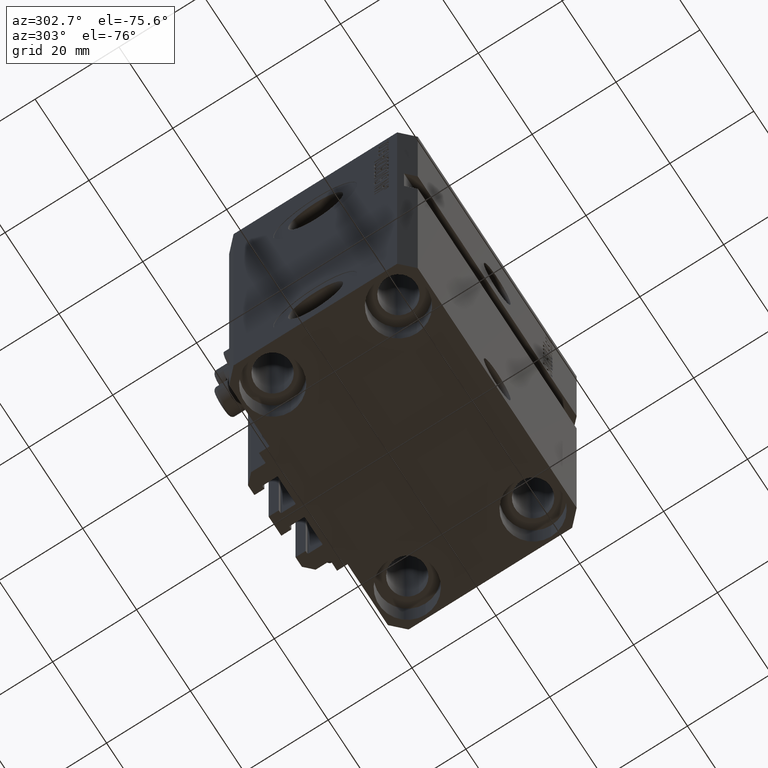
[diagram: clean part render]
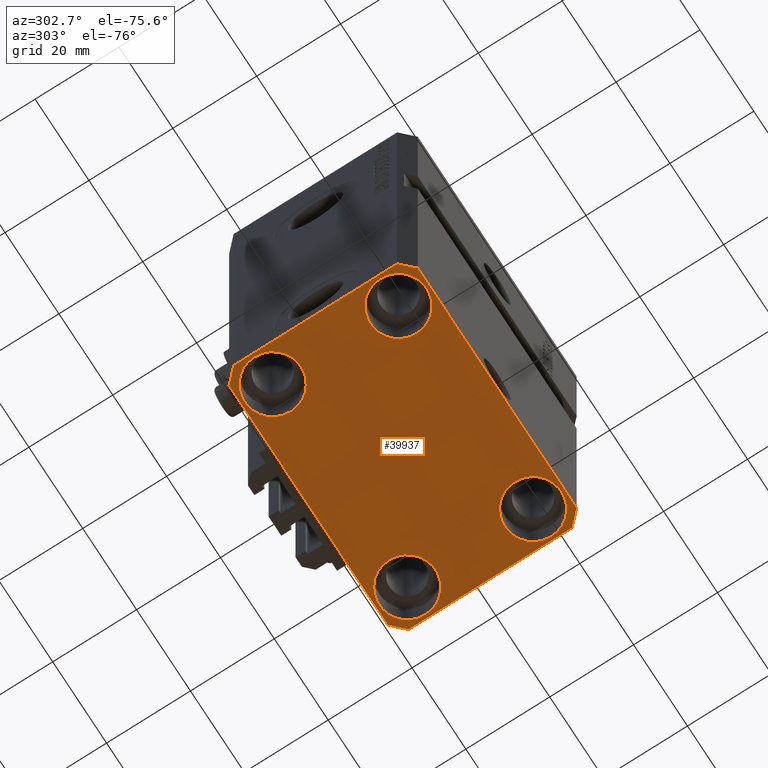
[diagram: same view with one face highlighted and labeled with its STEP entity id]
A machine part, auxiliary view. The second image highlights one B-rep face of the part: STEP entity #39937.
In plain terms, the highlighted planar face has unit normal (0, 0, 1).
Its self-contained STEP definition (entity closure, byte-faithful):
#222 = VERTEX_POINT ( 'NONE', #24711 ) ;
#1506 = DIRECTION ( 'NONE',  ( 1.000000000000000000, 0.000000000000000000, 0.000000000000000000 ) ) ;
#1533 = CIRCLE ( 'NONE', #2302, 6.750000000041541881 ) ;
#1619 = VECTOR ( 'NONE', #29073, 1000.000000000000000 ) ;
#2116 = ORIENTED_EDGE ( 'NONE', *, *, #13832, .T. ) ;
#2244 = VECTOR ( 'NONE', #15704, 1000.000000000000000 ) ;
#2291 = EDGE_CURVE ( 'NONE', #18952, #23444, #23820, .T. ) ;
#2302 = AXIS2_PLACEMENT_3D ( 'NONE', #36928, #40039, #25741 ) ;
#3060 = VERTEX_POINT ( 'NONE', #26685 ) ;
#3150 = EDGE_CURVE ( 'NONE', #31774, #42498, #34679, .T. ) ;
#3349 = EDGE_LOOP ( 'NONE', ( #16920, #2116 ) ) ;
#3382 = CARTESIAN_POINT ( 'NONE',  ( 31.74999999997746869, -15.00000000000000000, -106.0000000000000000 ) ) ;
#4137 = AXIS2_PLACEMENT_3D ( 'NONE', #27156, #33367, #23111 ) ;
#4245 = LINE ( 'NONE', #26216, #2244 ) ;
#4280 = DIRECTION ( 'NONE',  ( -1.000000000000000000, -2.352167425053553784E-16, 0.000000000000000000 ) ) ;
#4428 = AXIS2_PLACEMENT_3D ( 'NONE', #9627, #9143, #1506 ) ;
#4696 = EDGE_CURVE ( 'NONE', #222, #31842, #42130, .T. ) ;
#5339 = VERTEX_POINT ( 'NONE', #45715 ) ;
#5705 = AXIS2_PLACEMENT_3D ( 'NONE', #13060, #38839, #42650 ) ;
#5771 = FACE_BOUND ( 'NONE', #30067, .T. ) ;
#6006 = PLANE ( 'NONE',  #34609 ) ;
#6308 = CIRCLE ( 'NONE', #24637, 6.749999999977465137 ) ;
#7078 = DIRECTION ( 'NONE',  ( -0.7071067811865474617, -0.7071067811865474617, 0.000000000000000000 ) ) ;
#7308 = CARTESIAN_POINT ( 'NONE',  ( -29.49999999999650413, 22.49999999999949907, -106.0000000000000000 ) ) ;
#7571 = CIRCLE ( 'NONE', #19768, 6.750000000041541881 ) ;
#7744 = CARTESIAN_POINT ( 'NONE',  ( -25.00000000000000355, 15.00000000000000000, -106.0000000000000000 ) ) ;
#9076 = DIRECTION ( 'NONE',  ( 1.000000000000000000, 0.000000000000000000, 0.000000000000000000 ) ) ;
#9143 = DIRECTION ( 'NONE',  ( -0.000000000000000000, -0.000000000000000000, 1.000000000000000000 ) ) ;
#9627 = CARTESIAN_POINT ( 'NONE',  ( 25.00000000000000355, -15.00000000000000000, -106.0000000000000000 ) ) ;
#9796 = CIRCLE ( 'NONE', #4428, 6.749999999977465137 ) ;
#9831 = CARTESIAN_POINT ( 'NONE',  ( 0.000000000000000000, 0.000000000000000000, -106.0000000000000000 ) ) ;
#10209 = CARTESIAN_POINT ( 'NONE',  ( -32.49999999999650413, -19.49999999999949907, -106.0000000000000000 ) ) ;
#10252 = CARTESIAN_POINT ( 'NONE',  ( -31.75000000004154899, -15.00000000000000000, -106.0000000000000000 ) ) ;
#10445 = DIRECTION ( 'NONE',  ( 0.7071067811865474617, -0.7071067811865474617, 0.000000000000000000 ) ) ;
#11592 = EDGE_LOOP ( 'NONE', ( #15008, #28534 ) ) ;
#12454 = DIRECTION ( 'NONE',  ( 1.000000000000000000, 0.000000000000000000, 0.000000000000000000 ) ) ;
#12633 = LINE ( 'NONE', #37930, #29042 ) ;
#12729 = EDGE_CURVE ( 'NONE', #23444, #25827, #4245, .T. ) ;
#12848 = AXIS2_PLACEMENT_3D ( 'NONE', #36089, #34619, #9076 ) ;
#13060 = CARTESIAN_POINT ( 'NONE',  ( 24.99999999999999645, 15.00000000000000888, -106.0000000000000000 ) ) ;
#13832 = EDGE_CURVE ( 'NONE', #5339, #22368, #7571, .T. ) ;
#14353 = EDGE_CURVE ( 'NONE', #30783, #35636, #9796, .T. ) ;
#14504 = CARTESIAN_POINT ( 'NONE',  ( 32.49999999999702993, 19.49999999999945999, -106.0000000000000000 ) ) ;
#14805 = EDGE_LOOP ( 'NONE', ( #15026, #32025 ) ) ;
#15008 = ORIENTED_EDGE ( 'NONE', *, *, #28863, .T. ) ;
#15026 = ORIENTED_EDGE ( 'NONE', *, *, #14353, .T. ) ;
#15119 = EDGE_CURVE ( 'NONE', #42498, #31774, #45621, .T. ) ;
#15704 = DIRECTION ( 'NONE',  ( 1.334402673828349134E-14, 1.000000000000000000, 0.000000000000000000 ) ) ;
#16274 = DIRECTION ( 'NONE',  ( 1.000000000000000000, 0.000000000000000000, 0.000000000000000000 ) ) ;
#16920 = ORIENTED_EDGE ( 'NONE', *, *, #18642, .T. ) ;
#17044 = ORIENTED_EDGE ( 'NONE', *, *, #29475, .F. ) ;
#17226 = VERTEX_POINT ( 'NONE', #20629 ) ;
#17620 = ORIENTED_EDGE ( 'NONE', *, *, #15119, .T. ) ;
#18642 = EDGE_CURVE ( 'NONE', #22368, #5339, #1533, .T. ) ;
#18847 = CARTESIAN_POINT ( 'NONE',  ( 29.49999999999707967, 22.49999999999951328, -106.0000000000000000 ) ) ;
#18952 = VERTEX_POINT ( 'NONE', #40210 ) ;
#19768 = AXIS2_PLACEMENT_3D ( 'NONE', #25475, #21891, #36656 ) ;
#20344 = FACE_OUTER_BOUND ( 'NONE', #25507, .T. ) ;
#20629 = CARTESIAN_POINT ( 'NONE',  ( 29.49999999999707967, 22.49999999999951328, -106.0000000000000000 ) ) ;
#20808 = CARTESIAN_POINT ( 'NONE',  ( 31.74999999995845101, 15.00000000000000888, -106.0000000000000000 ) ) ;
#20824 = FACE_BOUND ( 'NONE', #3349, .T. ) ;
#21060 = FACE_BOUND ( 'NONE', #14805, .T. ) ;
#21154 = DIRECTION ( 'NONE',  ( 0.000000000000000000, -1.000000000000000000, 0.000000000000000000 ) ) ;
#21305 = EDGE_CURVE ( 'NONE', #38129, #18952, #12633, .T. ) ;
#21891 = DIRECTION ( 'NONE',  ( -0.000000000000000000, -0.000000000000000000, 1.000000000000000000 ) ) ;
#22368 = VERTEX_POINT ( 'NONE', #10252 ) ;
#23111 = DIRECTION ( 'NONE',  ( 1.000000000000000000, 0.000000000000000000, 0.000000000000000000 ) ) ;
#23444 = VERTEX_POINT ( 'NONE', #38777 ) ;
#23473 = CARTESIAN_POINT ( 'NONE',  ( -29.49999999999650413, -22.49999999999949907, -106.0000000000000000 ) ) ;
#23820 = LINE ( 'NONE', #27623, #27044 ) ;
#24144 = CARTESIAN_POINT ( 'NONE',  ( 32.49999999999702993, 19.49999999999945999, -106.0000000000000000 ) ) ;
#24390 = ORIENTED_EDGE ( 'NONE', *, *, #29208, .F. ) ;
#24414 = DIRECTION ( 'NONE',  ( 0.000000000000000000, 0.000000000000000000, 1.000000000000000000 ) ) ;
#24498 = AXIS2_PLACEMENT_3D ( 'NONE', #7744, #33752, #16274 ) ;
#24637 = AXIS2_PLACEMENT_3D ( 'NONE', #27746, #45378, #12454 ) ;
#24711 = CARTESIAN_POINT ( 'NONE',  ( -32.49999999999650413, 19.49999999999949907, -106.0000000000000000 ) ) ;
#25419 = ORIENTED_EDGE ( 'NONE', *, *, #37729, .F. ) ;
#25475 = CARTESIAN_POINT ( 'NONE',  ( -25.00000000000000355, -15.00000000000000000, -106.0000000000000000 ) ) ;
#25507 = EDGE_LOOP ( 'NONE', ( #24390, #17044, #27184, #26946, #29121, #41640, #45787, #25419 ) ) ;
#25741 = DIRECTION ( 'NONE',  ( 1.000000000000000000, 0.000000000000000000, 0.000000000000000000 ) ) ;
#25827 = VERTEX_POINT ( 'NONE', #24144 ) ;
#26216 = CARTESIAN_POINT ( 'NONE',  ( 32.49999999999651124, -19.49999999999949196, -106.0000000000000000 ) ) ;
#26685 = CARTESIAN_POINT ( 'NONE',  ( -29.49999999999650413, 22.49999999999949907, -106.0000000000000000 ) ) ;
#26748 = VECTOR ( 'NONE', #4280, 1000.000000000000000 ) ;
#26946 = ORIENTED_EDGE ( 'NONE', *, *, #2291, .F. ) ;
#27044 = VECTOR ( 'NONE', #31447, 1000.000000000000000 ) ;
#27156 = CARTESIAN_POINT ( 'NONE',  ( -25.00000000000000355, 15.00000000000000000, -106.0000000000000000 ) ) ;
#27184 = ORIENTED_EDGE ( 'NONE', *, *, #12729, .F. ) ;
#27623 = CARTESIAN_POINT ( 'NONE',  ( 29.49999999999650413, -22.49999999999949196, -106.0000000000000000 ) ) ;
#27746 = CARTESIAN_POINT ( 'NONE',  ( 25.00000000000000355, -15.00000000000000000, -106.0000000000000000 ) ) ;
#28210 = CARTESIAN_POINT ( 'NONE',  ( -31.75000000002253842, 15.00000000000000000, -106.0000000000000000 ) ) ;
#28534 = ORIENTED_EDGE ( 'NONE', *, *, #37546, .T. ) ;
#28863 = EDGE_CURVE ( 'NONE', #32410, #31246, #41992, .T. ) ;
#29042 = VECTOR ( 'NONE', #30547, 1000.000000000000000 ) ;
#29073 = DIRECTION ( 'NONE',  ( -0.7071067811865352493, 0.7071067811865597852, 0.000000000000000000 ) ) ;
#29121 = ORIENTED_EDGE ( 'NONE', *, *, #21305, .F. ) ;
#29208 = EDGE_CURVE ( 'NONE', #17226, #3060, #44601, .T. ) ;
#29475 = EDGE_CURVE ( 'NONE', #25827, #17226, #39577, .T. ) ;
#30067 = EDGE_LOOP ( 'NONE', ( #17620, #39044 ) ) ;
#30547 = DIRECTION ( 'NONE',  ( 1.000000000000000000, 1.176083712526788232E-16, 0.000000000000000000 ) ) ;
#30783 = VERTEX_POINT ( 'NONE', #44958 ) ;
#31246 = VERTEX_POINT ( 'NONE', #46792 ) ;
#31447 = DIRECTION ( 'NONE',  ( 0.7071067811865483499, 0.7071067811865466846, 0.000000000000000000 ) ) ;
#31774 = VERTEX_POINT ( 'NONE', #20808 ) ;
#31842 = VERTEX_POINT ( 'NONE', #40314 ) ;
#32025 = ORIENTED_EDGE ( 'NONE', *, *, #33471, .T. ) ;
#32410 = VERTEX_POINT ( 'NONE', #28210 ) ;
#33367 = DIRECTION ( 'NONE',  ( -0.000000000000000000, -0.000000000000000000, 1.000000000000000000 ) ) ;
#33471 = EDGE_CURVE ( 'NONE', #35636, #30783, #6308, .T. ) ;
#33752 = DIRECTION ( 'NONE',  ( -0.000000000000000000, -0.000000000000000000, 1.000000000000000000 ) ) ;
#34609 = AXIS2_PLACEMENT_3D ( 'NONE', #9831, #24414, #38940 ) ;
#34619 = DIRECTION ( 'NONE',  ( -0.000000000000000000, -0.000000000000000000, 1.000000000000000000 ) ) ;
#34679 = CIRCLE ( 'NONE', #5705, 6.749999999958452790 ) ;
#34878 = CARTESIAN_POINT ( 'NONE',  ( 18.25000000004154543, 15.00000000000000888, -106.0000000000000000 ) ) ;
#35614 = FACE_BOUND ( 'NONE', #11592, .T. ) ;
#35636 = VERTEX_POINT ( 'NONE', #3382 ) ;
#35972 = LINE ( 'NONE', #7308, #40717 ) ;
#36089 = CARTESIAN_POINT ( 'NONE',  ( 24.99999999999999645, 15.00000000000000888, -106.0000000000000000 ) ) ;
#36208 = EDGE_CURVE ( 'NONE', #31842, #38129, #42889, .T. ) ;
#36656 = DIRECTION ( 'NONE',  ( 1.000000000000000000, 0.000000000000000000, 0.000000000000000000 ) ) ;
#36928 = CARTESIAN_POINT ( 'NONE',  ( -25.00000000000000355, -15.00000000000000000, -106.0000000000000000 ) ) ;
#37546 = EDGE_CURVE ( 'NONE', #31246, #32410, #43750, .T. ) ;
#37627 = VECTOR ( 'NONE', #10445, 1000.000000000000114 ) ;
#37729 = EDGE_CURVE ( 'NONE', #3060, #222, #35972, .T. ) ;
#37930 = CARTESIAN_POINT ( 'NONE',  ( -29.49999999999650413, -22.49999999999949907, -106.0000000000000000 ) ) ;
#38129 = VERTEX_POINT ( 'NONE', #23473 ) ;
#38777 = CARTESIAN_POINT ( 'NONE',  ( 32.49999999999651124, -19.49999999999949196, -106.0000000000000000 ) ) ;
#38839 = DIRECTION ( 'NONE',  ( -0.000000000000000000, -0.000000000000000000, 1.000000000000000000 ) ) ;
#38940 = DIRECTION ( 'NONE',  ( 1.000000000000000000, 0.000000000000000000, -0.000000000000000000 ) ) ;
#39044 = ORIENTED_EDGE ( 'NONE', *, *, #3150, .T. ) ;
#39577 = LINE ( 'NONE', #14504, #1619 ) ;
#39937 = ADVANCED_FACE ( 'NONE', ( #20824, #21060, #5771, #35614, #20344 ), #6006, .F. ) ;
#40039 = DIRECTION ( 'NONE',  ( -0.000000000000000000, -0.000000000000000000, 1.000000000000000000 ) ) ;
#40210 = CARTESIAN_POINT ( 'NONE',  ( 29.49999999999650413, -22.49999999999949196, -106.0000000000000000 ) ) ;
#40314 = CARTESIAN_POINT ( 'NONE',  ( -32.49999999999650413, -19.49999999999949907, -106.0000000000000000 ) ) ;
#40717 = VECTOR ( 'NONE', #7078, 1000.000000000000114 ) ;
#40809 = VECTOR ( 'NONE', #21154, 1000.000000000000000 ) ;
#41640 = ORIENTED_EDGE ( 'NONE', *, *, #36208, .F. ) ;
#41992 = CIRCLE ( 'NONE', #24498, 6.750000000022533087 ) ;
#42130 = LINE ( 'NONE', #42841, #40809 ) ;
#42498 = VERTEX_POINT ( 'NONE', #34878 ) ;
#42650 = DIRECTION ( 'NONE',  ( 1.000000000000000000, 0.000000000000000000, 0.000000000000000000 ) ) ;
#42841 = CARTESIAN_POINT ( 'NONE',  ( -32.49999999999650413, 19.49999999999949907, -106.0000000000000000 ) ) ;
#42889 = LINE ( 'NONE', #10209, #37627 ) ;
#43750 = CIRCLE ( 'NONE', #4137, 6.750000000022533087 ) ;
#44601 = LINE ( 'NONE', #18847, #26748 ) ;
#44958 = CARTESIAN_POINT ( 'NONE',  ( 18.25000000002253842, -15.00000000000000000, -106.0000000000000000 ) ) ;
#45378 = DIRECTION ( 'NONE',  ( -0.000000000000000000, -0.000000000000000000, 1.000000000000000000 ) ) ;
#45621 = CIRCLE ( 'NONE', #12848, 6.749999999958452790 ) ;
#45715 = CARTESIAN_POINT ( 'NONE',  ( -18.24999999995845812, -15.00000000000000000, -106.0000000000000000 ) ) ;
#45787 = ORIENTED_EDGE ( 'NONE', *, *, #4696, .F. ) ;
#46792 = CARTESIAN_POINT ( 'NONE',  ( -18.24999999997747224, 15.00000000000000000, -106.0000000000000000 ) ) ;